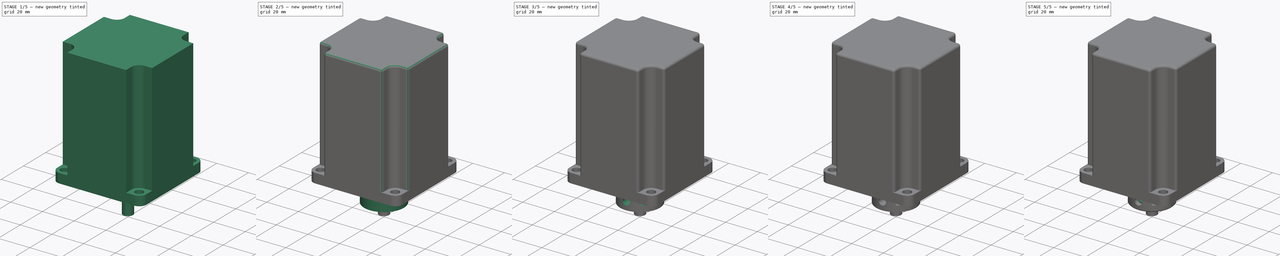
[diagram: build sequence overview — one tinted view per stage of 5, left to right]
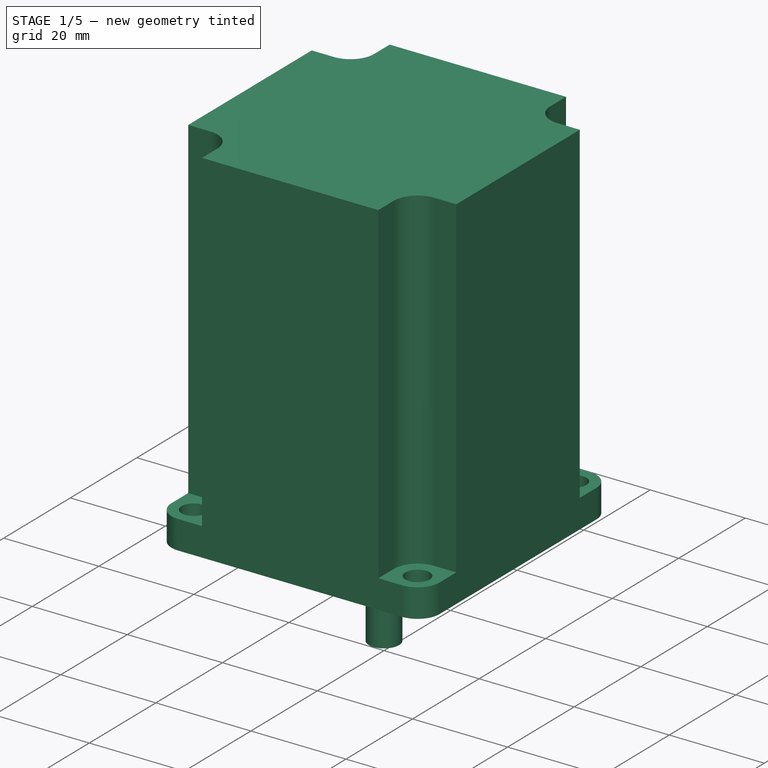
[diagram: stage 1 of 5 — iso view after this stage's code; geometry added in this stage tinted green]
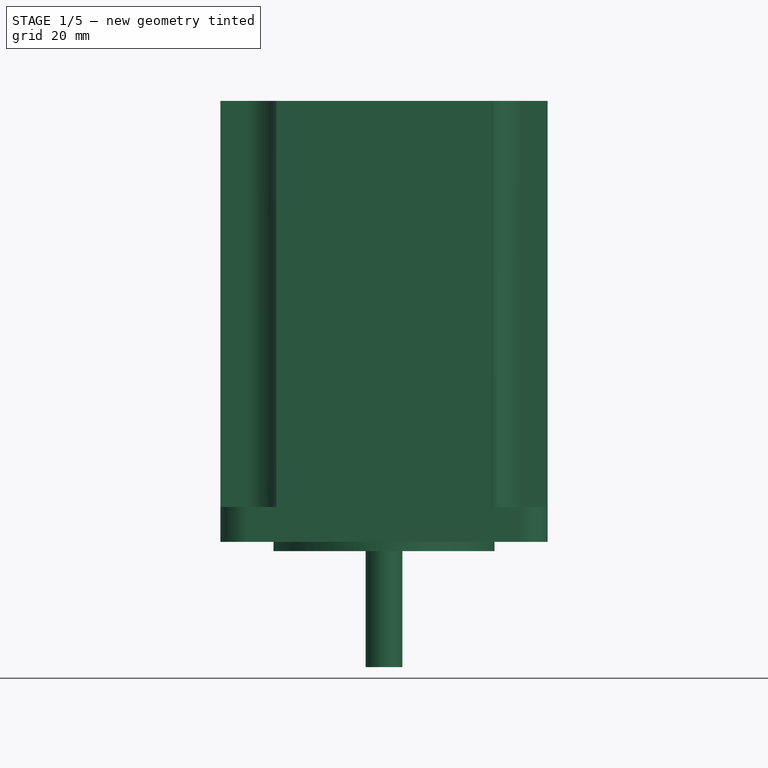
[diagram: stage 1 of 5 — front view after this stage's code; geometry added in this stage tinted green]
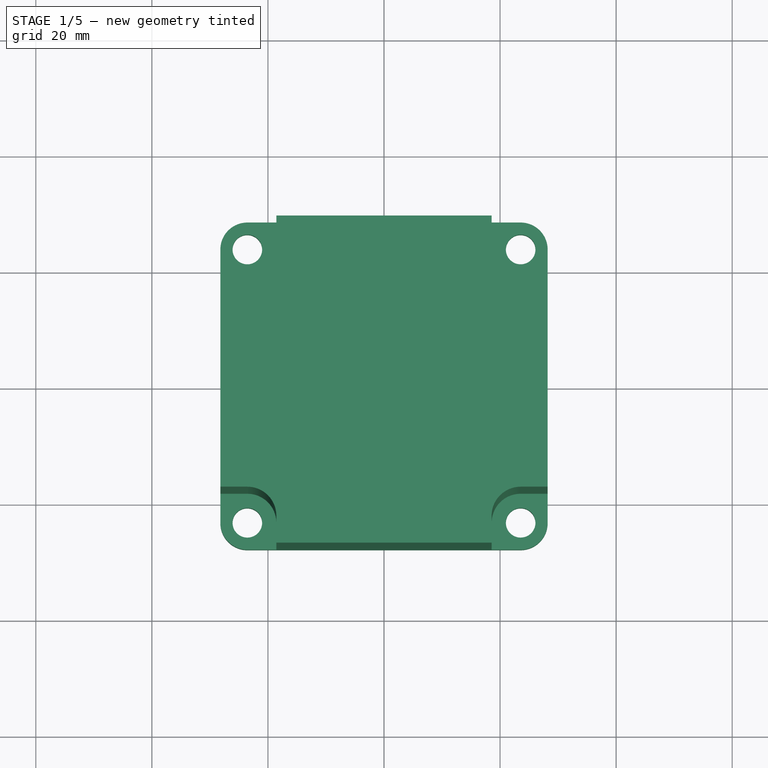
[diagram: stage 1 of 5 — top view after this stage's code; geometry added in this stage tinted green]
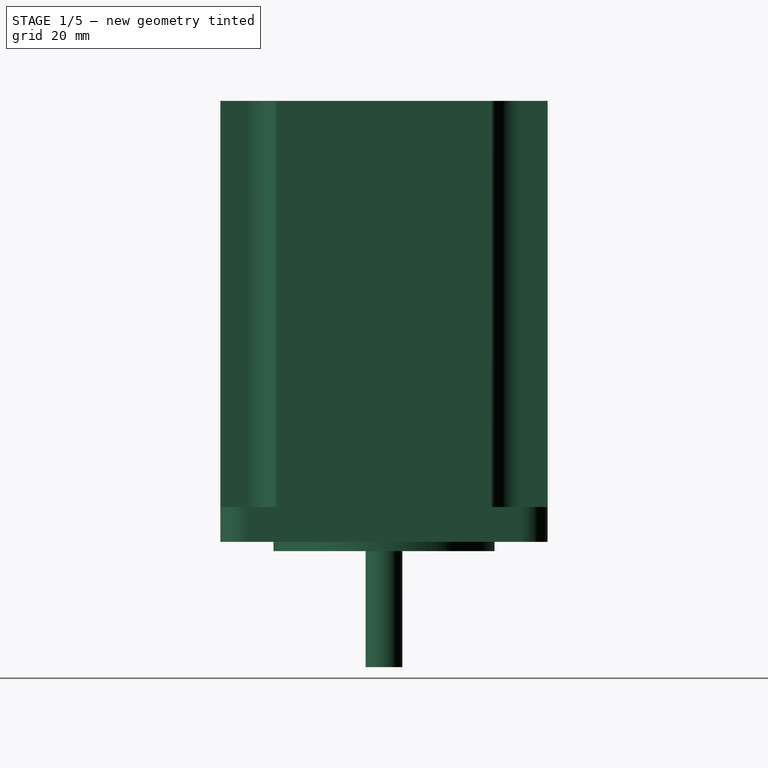
[diagram: stage 1 of 5 — right view after this stage's code; geometry added in this stage tinted green]
FCSTD DOCUMENT  (FreeCAD 2021.614R24301 +3747 (Git))
Label: NEMA23-76
License: Creative Commons Attribution
LicenseURL: http://creativecommons.org/licenses/by/4.0/
objects: App::FeaturePython×32, Part::FeaturePython×28, Sketcher::SketchObject×14, PartDesign::Pad×5, App::Link×5, PartDesign::Pocket×4, PartDesign::Hole×4, App::LinkElement×4, PartDesign::Body×2, PartDesign::Fillet×1, PartDesign::Line×1, PartDesign::SubtractiveHelix×1, PartDesign::Chamfer×1, App::DocumentObjectGroup×1
note: 91 computed .brp shape members not serialized (recipe doc carries the construction recipe); baked Part::Feature solids carry a one-line shape summary decoded from their .brp

FEATURE [Sketcher::SketchObject] Sketch
  FullyConstrained = true
  MapMode = 5
  Support = -> [XY_Plane]
  sketch-geometry (16):
    g0: LineSegment StartX=-23.55 StartY=28.2 StartZ=0 EndX=23.55 EndY=28.2 EndZ=0
    g1: LineSegment StartX=28.2 StartY=23.55 StartZ=0 EndX=28.2 EndY=-23.55 EndZ=0
    g2: LineSegment StartX=23.55 StartY=-28.2 StartZ=0 EndX=-23.55 EndY=-28.2 EndZ=0
    g3: LineSegment StartX=-28.2 StartY=-23.55 StartZ=0 EndX=-28.2 EndY=23.55 EndZ=0
    g4: ArcOfCircle CenterX=-23.55 CenterY=23.55 CenterZ=0 NormalX=0 NormalY=0 NormalZ=1 AngleXU=0 Radius=4.65 StartAngle=1.5708 EndAngle=3.14159
    g5: GeomPoint [constr] X=-28.2 Y=28.2 Z=0
    g6: ArcOfCircle CenterX=23.55 CenterY=23.55 CenterZ=0 NormalX=0 NormalY=0 NormalZ=1 AngleXU=0 Radius=4.65 StartAngle=0 EndAngle=1.5708
    g7: GeomPoint [constr] X=28.2 Y=28.2 Z=0
    g8: ArcOfCircle CenterX=23.55 CenterY=-23.55 CenterZ=0 NormalX=0 NormalY=0 NormalZ=1 AngleXU=0 Radius=4.65 StartAngle=4.71239 EndAngle=6.28319
    g9: GeomPoint [constr] X=28.2 Y=-28.2 Z=0
    g10: ArcOfCircle CenterX=-23.55 CenterY=-23.55 CenterZ=0 NormalX=0 NormalY=0 NormalZ=1 AngleXU=0 Radius=4.65 StartAngle=3.14159 EndAngle=4.71239
    g11: GeomPoint [constr] X=-28.2 Y=-28.2 Z=0
    g12: Circle CenterX=-23.55 CenterY=23.55 CenterZ=0 NormalX=0 NormalY=0 NormalZ=1 AngleXU=0 Radius=2.55
    g13: Circle CenterX=23.55 CenterY=23.55 CenterZ=0 NormalX=0 NormalY=0 NormalZ=1 AngleXU=0 Radius=2.55
    g14: Circle CenterX=23.55 CenterY=-23.55 CenterZ=0 NormalX=0 NormalY=0 NormalZ=1 AngleXU=0 Radius=2.55
    g15: Circle CenterX=-23.55 CenterY=-23.55 CenterZ=0 NormalX=0 NormalY=0 NormalZ=1 AngleXU=0 Radius=2.55
  constraints (35):
    c: Horizontal(g0)
    c: Horizontal(g2)
    c: Vertical(g1)
    c: Vertical(g3)
    c: Symmetric(g9,g5,g-1)
    c: PointOnObject(g5,g0)
    c: PointOnObject(g5,g3)
    c: Tangent(g0,g4) = 1.5708
    c: Tangent(g3,g4) = 1.5708
    c: PointOnObject(g7,g0)
    c: PointOnObject(g7,g1)
    c: Tangent(g0,g6) = 1.5708
    c: Tangent(g1,g6) = 1.5708
    c: PointOnObject(g9,g1)
    c: PointOnObject(g9,g2)
    c: Tangent(g1,g8) = 1.5708
    c: Tangent(g2,g8) = 1.5708
    c: PointOnObject(g11,g2)
    c: PointOnObject(g11,g3)
    c: Tangent(g2,g10) = 1.5708
    c: Tangent(g3,g10) = 1.5708
    c: Equal(g10,g8)
    c: Equal(g8,g6)
    c: Equal(g6,g4)
    c: Equal(g0,g1)
    c: DistanceX(g3,g1) = 56.4
    c: Coincident(g12,g4)
    c: Coincident(g13,g6)
    c: Coincident(g14,g8)
    c: Coincident(g15,g10)
    c: Equal(g15,g14)
    c: Equal(g14,g13)
    c: Equal(g13,g12)
    c: Diameter(g12) = 5.1
    c: DistanceX(g4,g6) = 47.1
FEATURE [PartDesign::Pad] Pad
  ClaimChildren = false
  Direction = (1,1,1)
  Fit = 0
  FitJoin = 0
  InnerFit = 0
  InnerFitJoin = 0
  InnerTaperAngle = 0
  InnerTaperAngleRev = 0
  Length = 6
  Length2 = 100
  Linearize = true
  NewSolid = false
  Profile = -> Sketch
  Refine = true
  Suppress = false
  Type = 0
FEATURE [Sketcher::SketchObject] Sketch001
  ExternalGeometry = -> [Pad]
  FullyConstrained = true
  MapMode = 5
  Placement = pos=(0,0,6) rot=(0,0,1;0rad)
  Support = -> [Pad]
  sketch-geometry (16):
    g0: LineSegment StartX=-18.55 StartY=28.2 StartZ=0 EndX=18.55 EndY=28.2 EndZ=0
    g1: LineSegment StartX=28.2 StartY=18.55 StartZ=0 EndX=28.2 EndY=-18.55 EndZ=0
    g2: LineSegment StartX=18.55 StartY=-28.2 StartZ=0 EndX=-18.55 EndY=-28.2 EndZ=0
    g3: LineSegment StartX=-28.2 StartY=-18.55 StartZ=0 EndX=-28.2 EndY=18.55 EndZ=0
    g4: ArcOfCircle CenterX=-23.55 CenterY=23.55 CenterZ=0 NormalX=0 NormalY=0 NormalZ=1 AngleXU=0 Radius=5 StartAngle=4.71239 EndAngle=6.28319
    g5: ArcOfCircle CenterX=23.55 CenterY=23.55 CenterZ=0 NormalX=0 NormalY=0 NormalZ=1 AngleXU=0 Radius=5 StartAngle=3.14159 EndAngle=4.71239
    g6: ArcOfCircle CenterX=23.55 CenterY=-23.55 CenterZ=0 NormalX=0 NormalY=0 NormalZ=1 AngleXU=0 Radius=5 StartAngle=1.5708 EndAngle=3.14159
    g7: ArcOfCircle CenterX=-23.55 CenterY=-23.55 CenterZ=0 NormalX=0 NormalY=0 NormalZ=1 AngleXU=0 Radius=5 StartAngle=1e-16 EndAngle=1.5708
    g8: LineSegment StartX=-18.55 StartY=28.2 StartZ=0 EndX=-18.55 EndY=23.55 EndZ=0
    g9: LineSegment StartX=-23.55 StartY=18.55 StartZ=0 EndX=-28.2 EndY=18.55 EndZ=0
    g10: LineSegment StartX=18.55 StartY=23.55 StartZ=0 EndX=18.55 EndY=28.2 EndZ=0
    g11: LineSegment StartX=23.55 StartY=18.55 StartZ=0 EndX=28.2 EndY=18.55 EndZ=0
    g12: LineSegment StartX=23.55 StartY=-18.55 StartZ=0 EndX=28.2 EndY=-18.55 EndZ=0
    g13: LineSegment StartX=18.55 StartY=-23.55 StartZ=0 EndX=18.55 EndY=-28.2 EndZ=0
    g14: LineSegment StartX=-18.55 StartY=-23.55 StartZ=0 EndX=-18.55 EndY=-28.2 EndZ=0
    g15: LineSegment StartX=-23.55 StartY=-18.55 StartZ=0 EndX=-28.2 EndY=-18.55 EndZ=0
  constraints (40):
    c: Horizontal(g0)
    c: Horizontal(g2)
    c: Vertical(g1)
    c: Vertical(g3)
    c: Coincident(g4,g-4)
    c: Vertical(g7,g4)
    c: Horizontal(g4,g5)
    c: Vertical(g5,g6)
    c: Horizontal(g7,g6)
    c: Symmetric(g6,g4,g-1)
    c: Equal(g5,g4)
    c: Equal(g4,g7)
    c: Equal(g7,g6)
    c: Diameter(g4) = 10
    c: Vertical(g10)
    c: Horizontal(g11)
    c: Horizontal(g12)
    c: Vertical(g14)
    c: Vertical(g8)
    c: Horizontal(g9)
    c: Coincident(g0,g8)
    c: Coincident(g3,g9)
    c: Coincident(g0,g10)
    c: Coincident(g1,g11)
    c: Coincident(g1,g12)
    c: Coincident(g2,g13)
    c: Tangent(g6,g13) = -1.5708
    c: Coincident(g3,g15)
    c: Tangent(g7,g14) = 1.5708
    c: Coincident(g2,g14)
    c: Tangent(g7,g15) = -1.5708
    c: Tangent(g6,g12) = 1.5708
    c: Tangent(g5,g10) = 1.5708
    c: Tangent(g5,g11) = -1.5708
    c: Tangent(g4,g8) = 1.5708
    c: Tangent(g4,g9) = 1.5708
    c: Horizontal(g0,g-4)
    c: Vertical(g3,g-4)
    c: Symmetric(g2,g0,g-1)
    c: Symmetric(g1,g3,g-2)
FEATURE [PartDesign::Pad] Pad001
  BaseFeature = -> Pad
  ClaimChildren = false
  Direction = (1,1,1)
  Fit = 0
  FitJoin = 0
  InnerFit = 0
  InnerFitJoin = 0
  InnerTaperAngle = 0
  InnerTaperAngleRev = 0
  Length = 70
  Length2 = 100
  Linearize = true
  NewSolid = false
  Profile = -> Sketch001
  Refine = true
  Suppress = false
  Type = 0
FEATURE [Sketcher::SketchObject] Sketch002
  FullyConstrained = true
  MapMode = 5
  Placement = pos=(0,0,0) rot=(1,0,0;3.14159rad)
  Support = -> [Pad001]
  sketch-geometry (1):
    g0: Circle CenterX=0 CenterY=0 CenterZ=0 NormalX=0 NormalY=0 NormalZ=1 AngleXU=0 Radius=19.05
  constraints (2):
    c: Coincident(g0,g-1)
    c: Diameter(g0) = 38.1
FEATURE [PartDesign::Pad] Pad002
  BaseFeature = -> Pad001
  ClaimChildren = false
  Direction = (1,1,1)
  Fit = 0
  FitJoin = 0
  InnerFit = 0
  InnerFitJoin = 0
  InnerTaperAngle = 0
  InnerTaperAngleRev = 0
  Length = 1.6
  Length2 = 100
  Linearize = true
  NewSolid = false
  Profile = -> Sketch002
  Refine = true
  Suppress = false
  Type = 0
FEATURE [Sketcher::SketchObject] Sketch003
  FullyConstrained = true
  MapMode = 5
  Placement = pos=(0,0,-1.6) rot=(1,0,0;3.14159rad)
  Support = -> [Pad002]
  sketch-geometry (1):
    g0: Circle CenterX=0 CenterY=0 CenterZ=0 NormalX=0 NormalY=0 NormalZ=1 AngleXU=0 Radius=3.175
  constraints (2):
    c: Coincident(g0,g-1)
    c: Diameter(g0) = 6.35
FEATURE [PartDesign::Pad] Pad003
  BaseFeature = -> Pad002
  ClaimChildren = false
  Direction = (1,1,1)
  Fit = 0
  FitJoin = 0
  InnerFit = 0
  InnerFitJoin = 0
  InnerTaperAngle = 0
  InnerTaperAngleRev = 0
  Length = 20
  Length2 = 100
  Linearize = true
  NewSolid = false
  Profile = -> Sketch003
  Refine = true
  Suppress = false
  Type = 0
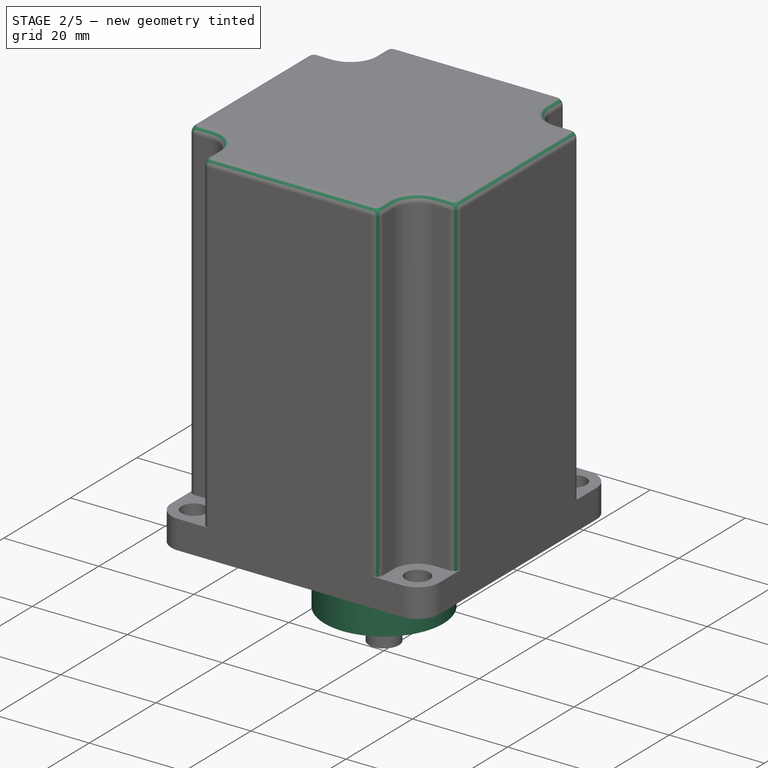
[diagram: stage 2 of 5 — iso view after this stage's code; geometry added in this stage tinted green]
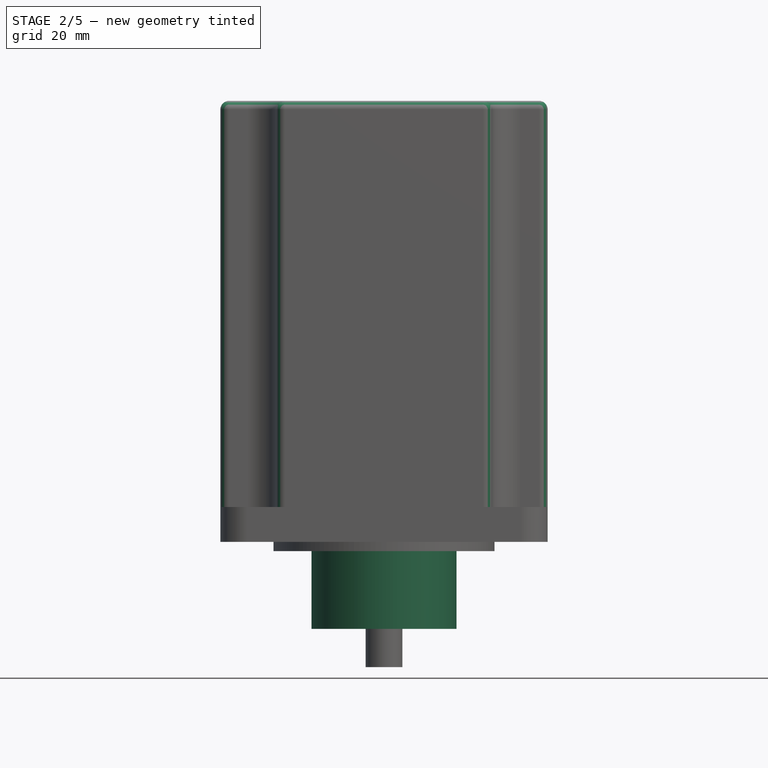
[diagram: stage 2 of 5 — front view after this stage's code; geometry added in this stage tinted green]
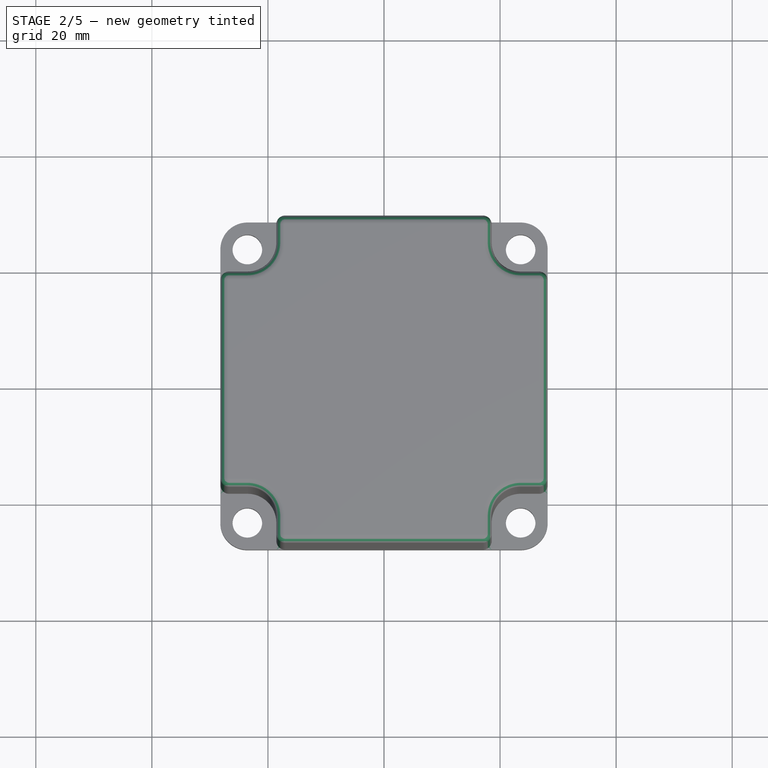
[diagram: stage 2 of 5 — top view after this stage's code; geometry added in this stage tinted green]
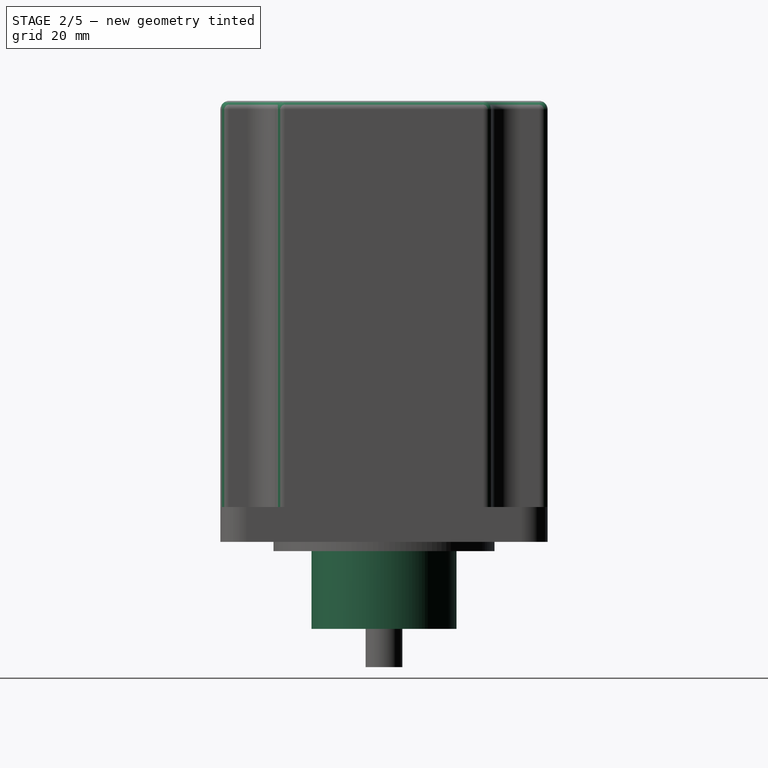
[diagram: stage 2 of 5 — right view after this stage's code; geometry added in this stage tinted green]
FEATURE [PartDesign::Fillet] Fillet
  Base = -> Pad003 [Edge71,Edge8,Edge6,Edge16,Edge14,Edge68,Edge67,Edge72,Edge39,Edge40,Edge43,Edge44,Edge15,Edge47,Edge7,Edge36]
  BaseFeature = -> Pad003
  NewSolid = false
  Radius = 1.5
  Refine = true
  SupportTransform = false
  Suppress = false
FEATURE [App::Link] Link  label="Link(Nema23)"
  AutoLinkLabel = true
  LinkedObject = -> Body
  SyncGroupVisibility = false
  _LinkVersion = 1
FEATURE [PartDesign::Line] DatumLine
  AttacherType = Attacher::AttachEngineLine
  Length = 97.6
  MapMode = 19
  MinimumLength = 10
  Placement = pos=(0,0,-21.6) rot=(-1,0,0;3.14159rad)
  ResizeMode = 0
  Support = -> [Fillet]
FEATURE [PartDesign::Body] Body  label="Nema23"
  AutoGroupSolids = false
  ExportMode = 0
  Group = -> [Sketch,Pad,Sketch001,Pad001,Sketch002,Pad002,Sketch003,Pad003,Fillet,DatumLine]
  Origin = -> Origin
  Tip = -> Fillet
  _ExportChildren = -> [Pad,Pad001,Pad002,Pad003,Fillet,DatumLine]
  _GroupVersion = 1
FEATURE [Sketcher::SketchObject] Sketch004
  FullyConstrained = true
  MapMode = 5
  Support = -> [XY_Plane001]
  sketch-geometry (1):
    g0: Circle CenterX=0 CenterY=0 CenterZ=0 NormalX=0 NormalY=0 NormalZ=1 AngleXU=0 Radius=12.5
  constraints (2):
    c: Coincident(g0,g-1)
    c: Diameter(g0) = 25
FEATURE [PartDesign::Pad] Pad004
  ClaimChildren = false
  Direction = (1,1,1)
  Fit = 0
  FitJoin = 0
  InnerFit = 0
  InnerFitJoin = 0
  InnerTaperAngle = 0
  InnerTaperAngleRev = 0
  Length = 30
  Length2 = 100
  Linearize = true
  Midplane = true
  NewSolid = false
  Profile = -> Sketch004
  Refine = true
  Suppress = false
  Type = 0
FEATURE [Sketcher::SketchObject] Sketch005
  FullyConstrained = true
  MapMode = 5
  Placement = pos=(0,0,15) rot=(0,0,1;0rad)
  Support = -> [Pad004]
  sketch-geometry (1):
    g0: Circle CenterX=0 CenterY=0 CenterZ=0 NormalX=0 NormalY=0 NormalZ=1 AngleXU=0 Radius=3.175
  constraints (2):
    c: Coincident(g0,g-1)
    c: Diameter(g0) = 6.35
FEATURE [PartDesign::Pocket] Pocket
  BaseFeature = -> Pad004
  ClaimChildren = false
  Fit = 0
  FitJoin = 0
  InnerFit = 0
  InnerFitJoin = 0
  InnerTaperAngle = 0
  InnerTaperAngleRev = 0
  Length = 5
  Length2 = 100
  Linearize = true
  NewSolid = false
  Profile = -> Sketch005
  Refine = true
  Suppress = false
  Type = 1
FEATURE [PartDesign::Body] Body001  label="Coupling"
  AutoGroupSolids = false
  ExportMode = 0
  Group = -> [Sketch004,Pad004,Sketch005,Pocket,Sketch006,Pocket001,Sketch007,Sketch008,Hole,Sketch009,Sketch010,Sketch011,Hole001,Hole002,Hole003,Sketch012,SubtractiveHelix,Pocket002,Sketch013,Pocket003,Chamfer]
  Origin = -> Origin001
  Placement = pos=(0,0,-51) rot=(0,0,1;0rad)
  Tip = -> Chamfer
  _ExportChildren = -> [Pad004,Pocket,Pocket001,Hole,Hole001,Hole002,Hole003,SubtractiveHelix,Pocket002,Pocket003,Chamfer]
  _GroupVersion = 1
FEATURE [Part::FeaturePython] Screw002  label="M5x16-Screw"  # Fasteners workbench fastener (typed FeaturePython)
  diameter = 6
  invert = false
  length = 4
  lengthCustom = 16
  matchOuter = false
  offset = 0
  thread = false
  type = 33
FEATURE [App::DocumentObjectGroup] Group  label="Components"
  ExportMode = 1
  Group = -> [Body001,Body,Screw002]
  _GroupVersion = 1
FEATURE [App::LinkElement] Link004_i0
  LinkPlacement = pos=(23.55,67.55,6) rot=(0,0,1;0rad)
  LinkedObject = -> Screw002
  Placement = pos=(23.55,67.55,6) rot=(0,0,1;0rad)
  _LinkVersion = 1
FEATURE [App::LinkElement] Link004_i1
  LinkPlacement = pos=(-23.55,67.55,6) rot=(0,0,1;0rad)
  LinkedObject = -> Screw002
  Placement = pos=(-23.55,67.55,6) rot=(0,0,1;0rad)
  _LinkVersion = 1
FEATURE [App::LinkElement] Link004_i2
  LinkPlacement = pos=(-23.55,20.45,6) rot=(0,0,1;0rad)
  LinkedObject = -> Screw002
  Placement = pos=(-23.55,20.45,6) rot=(0,0,1;0rad)
  _LinkVersion = 1
FEATURE [App::LinkElement] Link004_i3
  LinkPlacement = pos=(23.55,20.45,6) rot=(0,0,1;0rad)
  LinkedObject = -> Screw002
  Placement = pos=(23.55,20.45,6) rot=(0,0,1;0rad)
  _LinkVersion = 1
FEATURE [App::Link] Link004  label="M5x16-Screw 4ct"
  AutoLinkLabel = true
  ElementCount = 4
  ElementList = -> [Link004_i0,Link004_i1,Link004_i2,Link004_i3]
  LinkPlacement = pos=(0,-44,0) rot=(0,0,1;0rad)
  LinkedObject = -> Screw002
  Placement = pos=(0,-44,0) rot=(0,0,1;0rad)
  SyncGroupVisibility = false
  _LinkVersion = 1
FEATURE [Part::FeaturePython] Parts  # WARN: FeaturePython — macro-defined, semantics opaque (R4)
  Group = -> [Link,Link004]
  GroupMode = 0
  _LinkVersion = 1
FEATURE [Part::FeaturePython] Assembly  label="NEMA23-76-Assembly"  # WARN: FeaturePython — macro-defined, semantics opaque (R4)
  AutoRelax = true
  BuildShape = 0
  Freeze = false
  Group = -> [Constraints,Elements,Parts]
  Verbose = false
  _LinkVersion = 1
  _SolverType = 1
  _Version = 1
FEATURE [App::FeaturePython] Constraints  # WARN: FeaturePython — macro-defined, semantics opaque (R4)
  Group = -> [Constraint004,Constraint006,Constraint007,Constraint008,Constraint009]
  _LinkVersion = 1
  _Version = 1
FEATURE [App::FeaturePython] Elements  # WARN: FeaturePython — macro-defined, semantics opaque (R4)
  Group = -> [Element,Element001,Element002,Element003,Element004,Element005,Element010,_Element006,_Element007,_Element008,_Element009]
  _LinkVersion = 1
FEATURE [Part::FeaturePython] Element  # link proxy (typed FeaturePython)
  Detach = false
  LinkTransform = true
  LinkedObject = -> Link [Fillet.Edge19]
  _LinkVersion = 1
  _Parent = -> Elements
FEATURE [Part::FeaturePython] Element001  # link proxy (typed FeaturePython)
  Detach = false
  LinkTransform = true
  LinkedObject = -> Link [Fillet.Edge49]
  _LinkVersion = 1
  _Parent = -> Elements
FEATURE [Part::FeaturePython] Element002  # link proxy (typed FeaturePython)
  Detach = false
  LinkTransform = true
  LinkedObject = -> Link [Fillet.Edge101]
  _LinkVersion = 1
  _Parent = -> Elements
FEATURE [Part::FeaturePython] Element003  # link proxy (typed FeaturePython)
  Detach = false
  LinkTransform = true
  LinkedObject = -> Link [Fillet.Edge103]
  _LinkVersion = 1
  _Parent = -> Elements
FEATURE [Part::FeaturePython] Element004  label="bracket-mate"  # link proxy (typed FeaturePython)
  Detach = false
  LinkTransform = true
  LinkedObject = -> Link [Fillet.Edge36]
  _LinkVersion = 1
  _Parent = -> Elements
FEATURE [Part::FeaturePython] Element005  label="Axis"  # link proxy (typed FeaturePython)
  Detach = false
  LinkTransform = true
  LinkedObject = -> Link [DatumLine.]
  _LinkVersion = 1
  _Parent = -> Elements
FEATURE [Part::FeaturePython] Assembly001  label="Coupling-Assembly"  # WARN: FeaturePython — macro-defined, semantics opaque (R4)
  AutoRelax = true
  BuildShape = 0
  Freeze = false
  Group = -> [Constraints001,Elements001,Parts001]
  Placement = pos=(0,5.84137e-06,-49) rot=(0,0,1;0rad)
  Verbose = false
  _LinkVersion = 1
  _SolverType = 1
  _Version = 1
FEATURE [App::FeaturePython] Constraints001  # WARN: FeaturePython — macro-defined, semantics opaque (R4)
  Group = -> [Constraint,Constraint001,Constraint002,Constraint003,Constraint005]
  _LinkVersion = 1
  _Version = 1
FEATURE [App::FeaturePython] Elements001  # WARN: FeaturePython — macro-defined, semantics opaque (R4)
  Group = -> [Element006,Element007,_Element,_Element001,_Element002,_Element003,_Element004,_Element005,Element008,Element009]
  _LinkVersion = 1
FEATURE [Part::FeaturePython] Element006  # link proxy (typed FeaturePython)
  Detach = false
  LinkTransform = true
  LinkedObject = -> Link001 [Hole.Sketch008.Edge2]
  Offset = pos=(0,0,3) rot=(0,0,1;0rad)
  Placement = pos=(0,-3,0) rot=(0,0,1;0rad)
  _LinkVersion = 1
  _Parent = -> Elements001
FEATURE [Part::FeaturePython] Element007  # link proxy (typed FeaturePython)
  Detach = false
  LinkTransform = true
  LinkedObject = -> Link001 [Hole.Sketch008.Edge1]
  Offset = pos=(0,0,5) rot=(0,0,1;0rad)
  Placement = pos=(0,-5,1.8e-15) rot=(0,0,1;0rad)
  _LinkVersion = 1
  _Parent = -> Elements001
FEATURE [App::FeaturePython] Constraint  label="Attachment"  # WARN: FeaturePython — macro-defined, semantics opaque (R4)
  Cascade = false
  Disabled = false
  Group = -> [ElementLink,ElementLink001]
  Multiply = false
  _ConstraintType = 45
  _LinkVersion = 1
  _Parent = -> Constraints001
FEATURE [App::FeaturePython] ElementLink  label="_Element"  # link proxy (typed FeaturePython)
  LinkTransform = true
  LinkedObject = -> _Element
  _LinkVersion = 1
  _Parent = -> Constraint
FEATURE [Part::FeaturePython] _Element  # link proxy (typed FeaturePython)
  Detach = false
  LinkTransform = true
  LinkedObject = -> Link001 [Pocket003.Edge106]
  _LinkVersion = 1
  _Parent = -> Elements001
FEATURE [App::FeaturePython] ElementLink001  label="_Element001"  # link proxy (typed FeaturePython)
  LinkTransform = true
  LinkedObject = -> _Element001
  _LinkVersion = 1
  _Parent = -> Constraint
FEATURE [Part::FeaturePython] _Element001  # link proxy (typed FeaturePython)
  Detach = false
  LinkTransform = true
  LinkedObject = -> Screw [Edge9]
  _LinkVersion = 1
  _Parent = -> Elements001
FEATURE [App::FeaturePython] Constraint001  label="Attachment001"  # WARN: FeaturePython — macro-defined, semantics opaque (R4)
  Cascade = false
  Disabled = false
  Group = -> [ElementLink002,ElementLink003]
  Multiply = false
  _ConstraintType = 45
  _LinkVersion = 1
  _Parent = -> Constraints001
FEATURE [App::FeaturePython] ElementLink002  label="_Element002"  # link proxy (typed FeaturePython)
  LinkTransform = true
  LinkedObject = -> _Element002
  _LinkVersion = 1
  _Parent = -> Constraint001
FEATURE [Part::FeaturePython] _Element002  # link proxy (typed FeaturePython)
  Detach = false
  LinkTransform = true
  LinkedObject = -> Link001 [Pocket003.Edge174]
  _LinkVersion = 1
  _Parent = -> Elements001
FEATURE [App::FeaturePython] ElementLink003  label="_Element003"  # link proxy (typed FeaturePython)
  LinkTransform = true
  LinkedObject = -> _Element003
  _LinkVersion = 1
  _Parent = -> Constraint001
FEATURE [Part::FeaturePython] _Element003  # link proxy (typed FeaturePython)
  Detach = false
  LinkTransform = true
  LinkedObject = -> Link003 [Edge9]
  _LinkVersion = 1
  _Parent = -> Elements001
FEATURE [App::FeaturePython] Constraint002  label="Attachment002"  # WARN: FeaturePython — macro-defined, semantics opaque (R4)
  Cascade = false
  Disabled = false
  Group = -> [ElementLink004,ElementLink005]
  Multiply = false
  _ConstraintType = 45
  _LinkVersion = 1
  _Parent = -> Constraints001
FEATURE [App::FeaturePython] ElementLink004  label="Element006"  # link proxy (typed FeaturePython)
  LinkTransform = true
  LinkedObject = -> Element006
  _LinkVersion = 1
  _Parent = -> Constraint002
FEATURE [App::FeaturePython] ElementLink005  label="_Element004"  # link proxy (typed FeaturePython)
  LinkTransform = true
  LinkedObject = -> _Element004
  _LinkVersion = 1
  _Parent = -> Constraint002
FEATURE [Part::FeaturePython] _Element004  # link proxy (typed FeaturePython)
  Detach = false
  LinkTransform = true
  LinkedObject = -> Screw001 [Edge10]
  _LinkVersion = 1
  _Parent = -> Elements001
FEATURE [App::FeaturePython] Constraint003  label="Attachment003"  # WARN: FeaturePython — macro-defined, semantics opaque (R4)
  Cascade = false
  Disabled = false
  Group = -> [ElementLink006,ElementLink007]
  Multiply = false
  _ConstraintType = 45
  _LinkVersion = 1
  _Parent = -> Constraints001
FEATURE [App::FeaturePython] ElementLink006  label="Element007"  # link proxy (typed FeaturePython)
  LinkTransform = true
  LinkedObject = -> Element007
  _LinkVersion = 1
  _Parent = -> Constraint003
FEATURE [App::FeaturePython] ElementLink007  label="_Element005"  # link proxy (typed FeaturePython)
  LinkTransform = true
  LinkedObject = -> _Element005
  _LinkVersion = 1
  _Parent = -> Constraint003
FEATURE [Part::FeaturePython] _Element005  # link proxy (typed FeaturePython)
  Detach = false
  LinkTransform = true
  LinkedObject = -> Link002 [Edge10]
  _LinkVersion = 1
  _Parent = -> Elements001
FEATURE [Part::FeaturePython] Element008  label="motor-mate"  # link proxy (typed FeaturePython)
  Detach = false
  LinkTransform = true
  LinkedObject = -> Link001 [Pocket.Sketch005.]
  Offset = pos=(0,0,-21) rot=(0,0,1;0rad)
  Placement = pos=(0,0,-21) rot=(0,0,1;0rad)
  _LinkVersion = 1
  _Parent = -> Elements001
FEATURE [Part::FeaturePython] Element009  label="screw-mate"  # link proxy (typed FeaturePython)
  Detach = false
  LinkTransform = true
  LinkedObject = -> Link001 [Pocket.Sketch005.]
  Offset = pos=(0,0,-10) rot=(0,0,1;0rad)
  Placement = pos=(0,0,-10) rot=(0,0,1;0rad)
  _LinkVersion = 1
  _Parent = -> Elements001
FEATURE [Part::FeaturePython] Element010  label="coupling-mate"  # link proxy (typed FeaturePython)
  Detach = false
  LinkTransform = true
  LinkedObject = -> Link [Fillet.Edge170]
  _LinkVersion = 1
  _Parent = -> Elements
FEATURE [App::FeaturePython] Constraint004  label="Locked"  # WARN: FeaturePython — macro-defined, semantics opaque (R4)
  Disabled = false
  Group = -> [ElementLink008]
  _ConstraintType = 0
  _LinkVersion = 1
  _Parent = -> Constraints
FEATURE [App::FeaturePython] ElementLink008  label="coupling-mate"  # link proxy (typed FeaturePython)
  LinkTransform = true
  LinkedObject = -> Element010
  _LinkVersion = 1
  _Parent = -> Constraint004
FEATURE [App::FeaturePython] Constraint005  label="Locked001"  # WARN: FeaturePython — macro-defined, semantics opaque (R4)
  Disabled = false
  Group = -> [ElementLink009]
  _ConstraintType = 0
  _LinkVersion = 1
  _Parent = -> Constraints001
FEATURE [App::FeaturePython] ElementLink009  label="motor-mate"  # link proxy (typed FeaturePython)
  LinkTransform = true
  LinkedObject = -> Element008
  _LinkVersion = 1
  _Parent = -> Constraint005
FEATURE [App::FeaturePython] Constraint006  label="Attachment004"  # WARN: FeaturePython — macro-defined, semantics opaque (R4)
  Cascade = false
  Disabled = false
  Group = -> [ElementLink010,ElementLink011]
  Multiply = false
  _ConstraintType = 45
  _LinkVersion = 1
  _Parent = -> Constraints
FEATURE [App::FeaturePython] ElementLink010  label="_Element006"  # link proxy (typed FeaturePython)
  LinkTransform = true
  LinkedObject = -> _Element006
  _LinkVersion = 1
  _Parent = -> Constraint006
FEATURE [Part::FeaturePython] _Element006  # link proxy (typed FeaturePython)
  Detach = false
  LinkTransform = true
  LinkedObject = -> Link004 [0.Edge9]
  _LinkVersion = 1
  _Parent = -> Elements
FEATURE [App::FeaturePython] ElementLink011  label="Element"  # link proxy (typed FeaturePython)
  LinkTransform = true
  LinkedObject = -> Element
  _LinkVersion = 1
  _Parent = -> Constraint006
FEATURE [App::FeaturePython] Constraint007  label="Attachment005"  # WARN: FeaturePython — macro-defined, semantics opaque (R4)
  Cascade = false
  Disabled = false
  Group = -> [ElementLink012,ElementLink013]
  Multiply = false
  _ConstraintType = 45
  _LinkVersion = 1
  _Parent = -> Constraints
FEATURE [App::FeaturePython] ElementLink012  label="_Element007"  # link proxy (typed FeaturePython)
  LinkTransform = true
  LinkedObject = -> _Element007
  _LinkVersion = 1
  _Parent = -> Constraint007
FEATURE [Part::FeaturePython] _Element007  # link proxy (typed FeaturePython)
  Detach = false
  LinkTransform = true
  LinkedObject = -> Link004 [1.Edge9]
  _LinkVersion = 1
  _Parent = -> Elements
FEATURE [App::FeaturePython] ElementLink013  label="Element001"  # link proxy (typed FeaturePython)
  LinkTransform = true
  LinkedObject = -> Element001
  _LinkVersion = 1
  _Parent = -> Constraint007
FEATURE [App::FeaturePython] Constraint008  label="Attachment006"  # WARN: FeaturePython — macro-defined, semantics opaque (R4)
  Cascade = false
  Disabled = false
  Group = -> [ElementLink014,ElementLink015]
  Multiply = false
  _ConstraintType = 45
  _LinkVersion = 1
  _Parent = -> Constraints
FEATURE [App::FeaturePython] ElementLink014  label="_Element008"  # link proxy (typed FeaturePython)
  LinkTransform = true
  LinkedObject = -> _Element008
  _LinkVersion = 1
  _Parent = -> Constraint008
FEATURE [Part::FeaturePython] _Element008  # link proxy (typed FeaturePython)
  Detach = false
  LinkTransform = true
  LinkedObject = -> Link004 [2.Edge9]
  _LinkVersion = 1
  _Parent = -> Elements
FEATURE [App::FeaturePython] ElementLink015  label="Element002"  # link proxy (typed FeaturePython)
  LinkTransform = true
  LinkedObject = -> Element002
  _LinkVersion = 1
  _Parent = -> Constraint008
FEATURE [App::FeaturePython] Constraint009  label="Attachment007"  # WARN: FeaturePython — macro-defined, semantics opaque (R4)
  Cascade = false
  Disabled = false
  Group = -> [ElementLink016,ElementLink017]
  Multiply = false
  _ConstraintType = 45
  _LinkVersion = 1
  _Parent = -> Constraints
FEATURE [App::FeaturePython] ElementLink016  label="_Element009"  # link proxy (typed FeaturePython)
  LinkTransform = true
  LinkedObject = -> _Element009
  _LinkVersion = 1
  _Parent = -> Constraint009
FEATURE [Part::FeaturePython] _Element009  # link proxy (typed FeaturePython)
  Detach = false
  LinkTransform = true
  LinkedObject = -> Link004 [3.Edge9]
  _LinkVersion = 1
  _Parent = -> Elements
FEATURE [App::FeaturePython] ElementLink017  label="Element003"  # link proxy (typed FeaturePython)
  LinkTransform = true
  LinkedObject = -> Element003
  _LinkVersion = 1
  _Parent = -> Constraint009
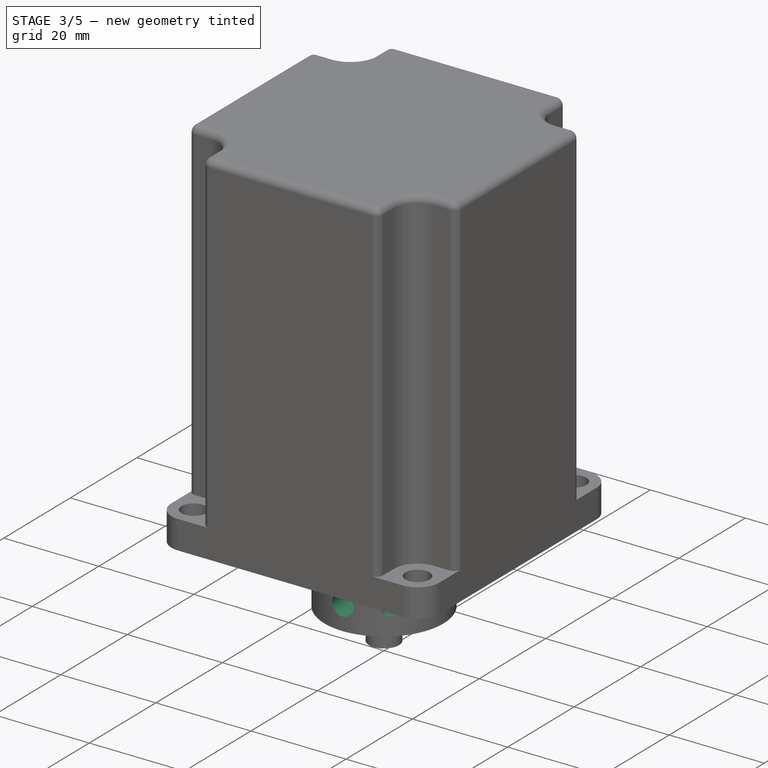
[diagram: stage 3 of 5 — iso view after this stage's code; geometry added in this stage tinted green]
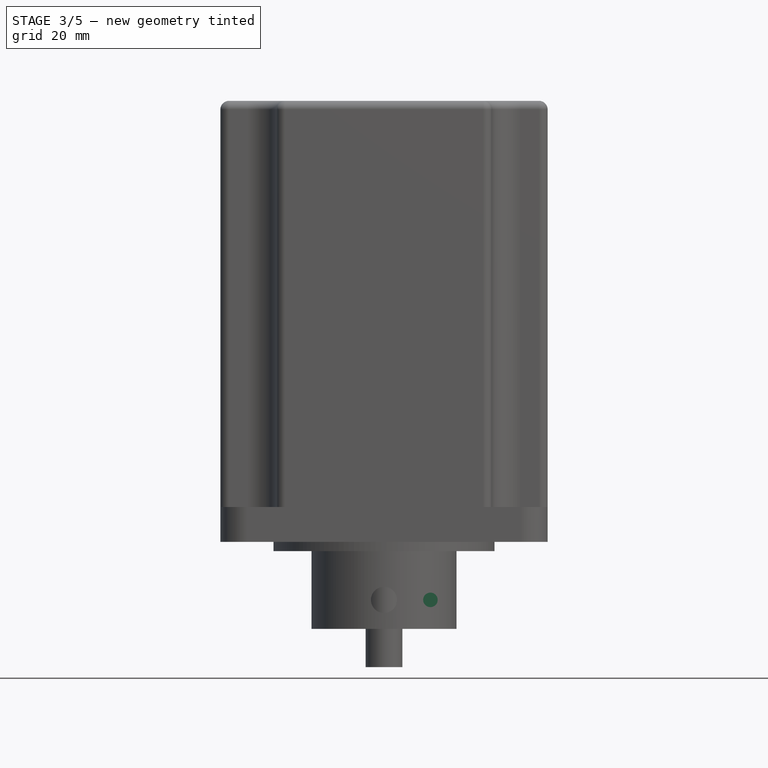
[diagram: stage 3 of 5 — front view after this stage's code; geometry added in this stage tinted green]
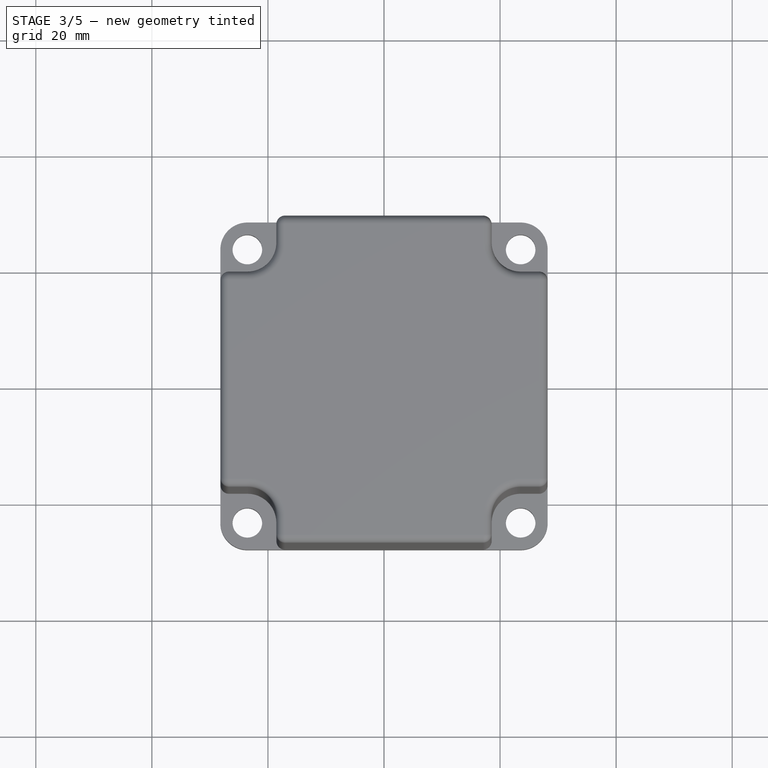
[diagram: stage 3 of 5 — top view after this stage's code; geometry added in this stage tinted green]
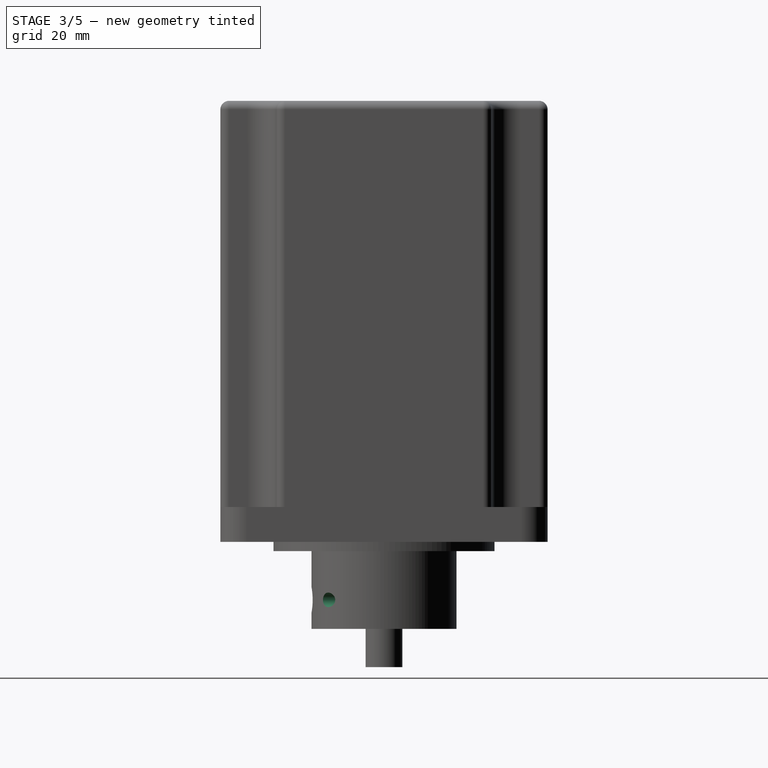
[diagram: stage 3 of 5 — right view after this stage's code; geometry added in this stage tinted green]
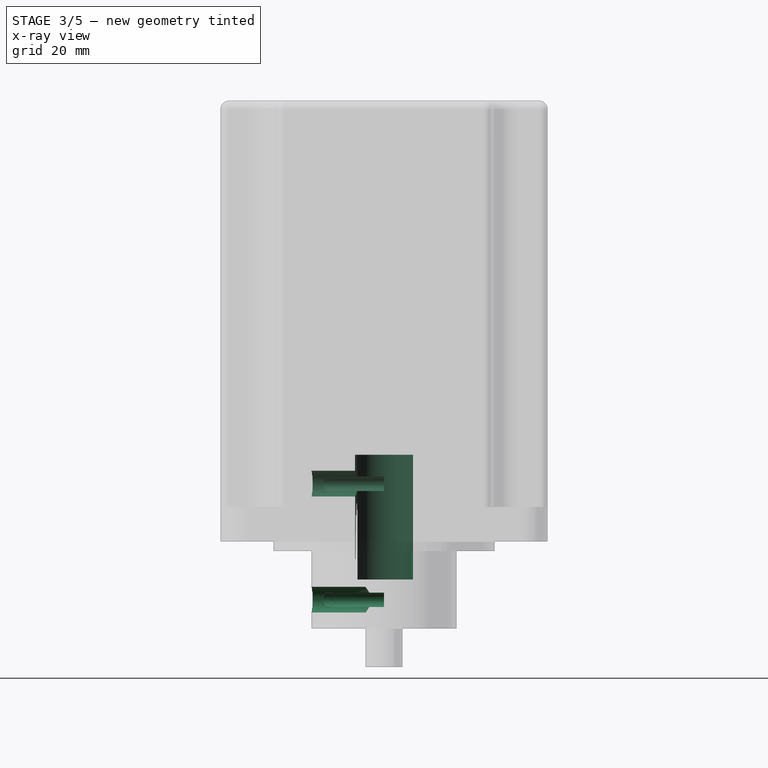
[diagram: stage 3 of 5 — x-ray composite at the right view; earlier geometry ghosted, this stage's added geometry solid]
FEATURE [Sketcher::SketchObject] Sketch006
  FullyConstrained = true
  MapMode = 5
  Placement = pos=(0,0,15) rot=(0,0,1;0rad)
  Support = -> [Pocket]
  sketch-geometry (1):
    g0: Circle CenterX=0 CenterY=0 CenterZ=0 NormalX=0 NormalY=0 NormalZ=1 AngleXU=0 Radius=5
  constraints (2):
    c: Coincident(g0,g-1)
    c: Diameter(g0) = 10
FEATURE [PartDesign::Pocket] Pocket001
  BaseFeature = -> Pocket
  ClaimChildren = false
  Fit = 0
  FitJoin = 0
  InnerFit = 0
  InnerFitJoin = 0
  InnerTaperAngle = 0
  InnerTaperAngleRev = 0
  Length = 21.5
  Length2 = 100
  Linearize = true
  NewSolid = false
  Profile = -> Sketch006
  Refine = true
  Suppress = false
  Type = 0
FEATURE [Sketcher::SketchObject] Sketch007
  FullyConstrained = true
  MapMode = 5
  Placement = pos=(0,0,15) rot=(0,0,1;0rad)
  Support = -> [Pocket001]
  sketch-geometry (4):
    g0: LineSegment StartX=-11.5 StartY=0.5 StartZ=0 EndX=13.5 EndY=0.5 EndZ=0
    g1: LineSegment StartX=13.5 StartY=0.5 StartZ=0 EndX=13.5 EndY=-0.5 EndZ=0
    g2: LineSegment StartX=13.5 StartY=-0.5 StartZ=0 EndX=-11.5 EndY=-0.5 EndZ=0
    g3: LineSegment StartX=-11.5 StartY=-0.5 StartZ=0 EndX=-11.5 EndY=0.5 EndZ=0
  constraints (11):
    c: Coincident(g0,g1)
    c: Coincident(g1,g2)
    c: Coincident(g2,g3)
    c: Coincident(g3,g0)
    c: Horizontal(g0)
    c: Horizontal(g2)
    c: DistanceY(g1,g1) = 1
    c: Symmetric(g1,g0,g-1)
    c: DistanceX(g2,g2) = 25
    c: Vertical(g3)
    c: DistanceX(g2,g-1) = 11.5
FEATURE [Sketcher::SketchObject] Sketch008
  FullyConstrained = true
  MapMode = 5
  Placement = pos=(0,0,0) rot=(1,0,0;1.5708rad)
  Support = -> [XZ_Plane001]
  sketch-geometry (2):
    g0: Circle CenterX=0 CenterY=10 CenterZ=0 NormalX=0 NormalY=0 NormalZ=1 AngleXU=0 Radius=1.75
    g1: Circle CenterX=0 CenterY=-10 CenterZ=0 NormalX=0 NormalY=0 NormalZ=1 AngleXU=0 Radius=1.75
  constraints (5):
    c: PointOnObject(g0,g-2)
    c: Equal(g1,g0)
    c: Symmetric(g0,g1,g-1)
    c: DistanceY(g1,g0) = 20
    c: Diameter(g0) = 3.5
FEATURE [PartDesign::Hole] Hole
  BaseFeature = -> Pocket001
  ClaimChildren = false
  CustomThreadClearance = 0
  Depth = 25
  DepthType = 1
  Diameter = 4.5
  DrillForDepth = false
  DrillPoint = 1
  DrillPointAngle = 118
  Fit = 0
  FitJoin = 0
  HoleCutCountersinkAngle = 90
  HoleCutCustomValues = false
  HoleCutDepth = 0
  HoleCutDiameter = 6.1
  HoleCutType = 0
  InnerFit = 0
  InnerFitJoin = 0
  ModelThread = false
  NewSolid = false
  Profile = -> Sketch008
  Refine = true
  Reversed = true
  Suppress = false
  Tapered = false
  TaperedAngle = 90
  ThreadClass = 0
  ThreadDepth = 93.5288
  ThreadDepthType = 0
  ThreadDirection = 0
  ThreadFit = 0
  ThreadSize = 0
  ThreadType = 0
  Threaded = false
  UseCustomThreadClearance = false
FEATURE [Sketcher::SketchObject] Sketch009
  FullyConstrained = true
  MapMode = 5
  Placement = pos=(0,0,0) rot=(1,0,0;1.5708rad)
  Support = -> [XZ_Plane001]
  sketch-geometry (2):
    g0: Circle CenterX=8 CenterY=10 CenterZ=0 NormalX=0 NormalY=0 NormalZ=1 AngleXU=0 Radius=1.25
    g1: Circle CenterX=8 CenterY=-10 CenterZ=0 NormalX=0 NormalY=0 NormalZ=1 AngleXU=0 Radius=1.25
  constraints (5):
    c: Symmetric(g0,g1,g-1)
    c: DistanceX(g-1,g0) = 8
    c: DistanceY(g1,g0) = 20
    c: Equal(g0,g1)
    c: Diameter(g0) = 2.5
FEATURE [Sketcher::SketchObject] Sketch010
  FullyConstrained = true
  MapMode = 5
  Placement = pos=(0,0,0) rot=(1,0,0;1.5708rad)
  Support = -> [XZ_Plane001]
  sketch-geometry (2):
    g0: Circle CenterX=8 CenterY=10 CenterZ=0 NormalX=0 NormalY=0 NormalZ=1 AngleXU=0 Radius=1.25
    g1: Circle CenterX=8 CenterY=-10 CenterZ=0 NormalX=0 NormalY=0 NormalZ=1 AngleXU=0 Radius=1.25
  constraints (5):
    c: Symmetric(g0,g1,g-1)
    c: DistanceX(g-1,g0) = 8
    c: DistanceY(g1,g0) = 20
    c: Equal(g0,g1)
    c: Diameter(g0) = 2.5
FEATURE [Sketcher::SketchObject] Sketch011
  AttachmentOffset = pos=(0,0,-4) rot=(0,0,1;0rad)
  FullyConstrained = true
  MapMode = 5
  Placement = pos=(0,4,9e-16) rot=(1,0,0;1.5708rad)
  Support = -> [XZ_Plane001]
  sketch-geometry (2):
    g0: Circle CenterX=8 CenterY=10 CenterZ=0 NormalX=0 NormalY=0 NormalZ=1 AngleXU=0 Radius=1.25
    g1: Circle CenterX=8 CenterY=-10 CenterZ=0 NormalX=0 NormalY=0 NormalZ=1 AngleXU=0 Radius=1.25
  constraints (5):
    c: Symmetric(g0,g1,g-1)
    c: DistanceX(g-1,g0) = 8
    c: DistanceY(g1,g0) = 20
    c: Equal(g0,g1)
    c: Diameter(g0) = 2.5
FEATURE [PartDesign::Hole] Hole001
  BaseFeature = -> Hole
  ClaimChildren = false
  CustomThreadClearance = 0
  Depth = 25
  DepthType = 1
  Diameter = 2.5
  DrillForDepth = false
  DrillPoint = 1
  DrillPointAngle = 118
  Fit = 0
  FitJoin = 0
  HoleCutCountersinkAngle = 90
  HoleCutCustomValues = false
  HoleCutDepth = 0
  HoleCutDiameter = 6.1
  HoleCutType = 0
  InnerFit = 0
  InnerFitJoin = 0
  ModelThread = false
  NewSolid = false
  Profile = -> Sketch009
  Refine = true
  Reversed = true
  Suppress = false
  Tapered = false
  TaperedAngle = 90
  ThreadClass = 0
  ThreadDepth = 93.5621
  ThreadDepthType = 0
  ThreadDirection = 0
  ThreadFit = 0
  ThreadSize = 0
  ThreadType = 0
  Threaded = false
  UseCustomThreadClearance = false
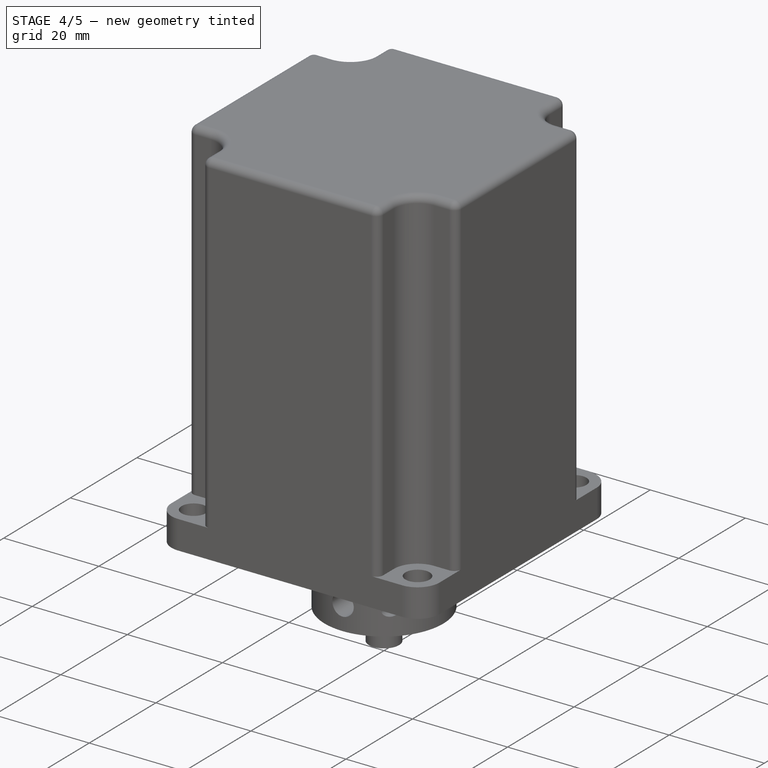
[diagram: stage 4 of 5 — iso view after this stage's code; geometry added in this stage tinted green]
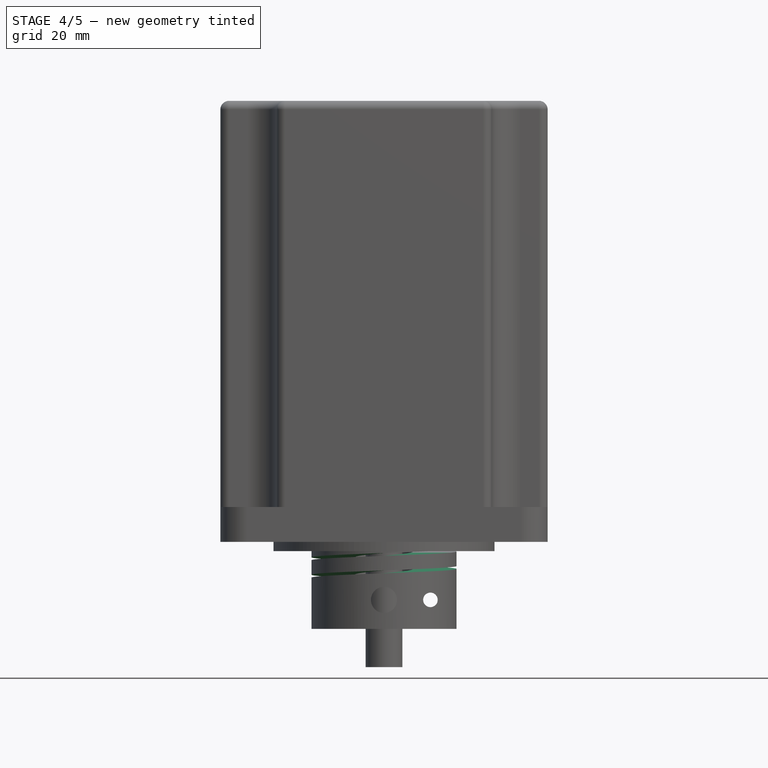
[diagram: stage 4 of 5 — front view after this stage's code; geometry added in this stage tinted green]
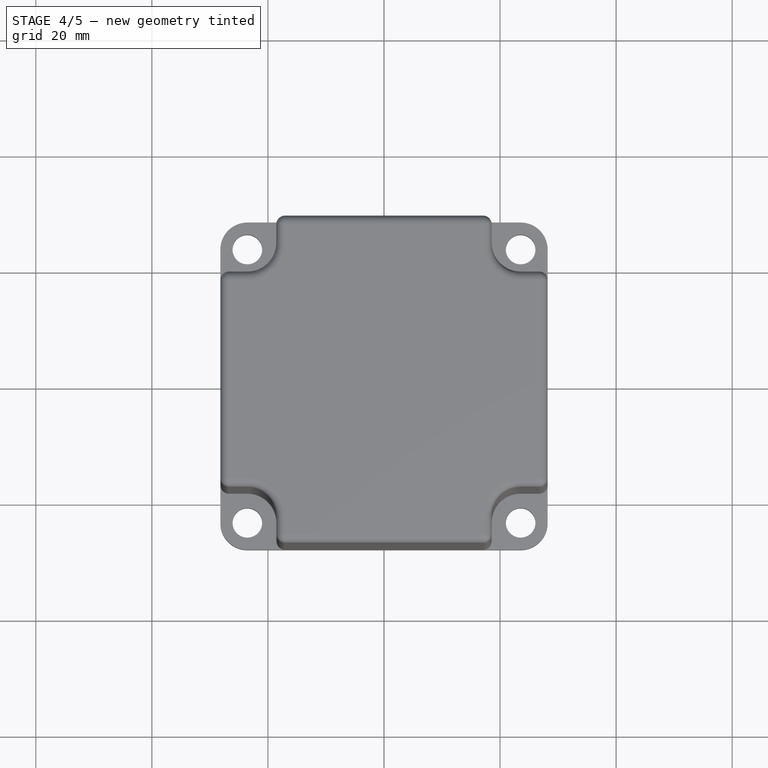
[diagram: stage 4 of 5 — top view after this stage's code; geometry added in this stage tinted green]
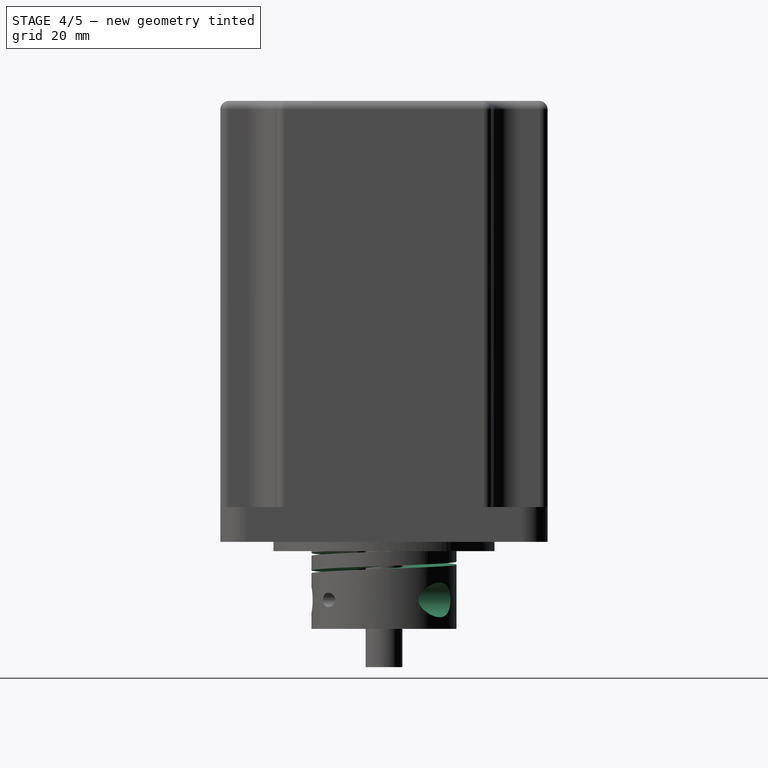
[diagram: stage 4 of 5 — right view after this stage's code; geometry added in this stage tinted green]
FEATURE [PartDesign::Hole] Hole002
  BaseFeature = -> Hole001
  ClaimChildren = false
  CustomThreadClearance = 0
  Depth = 25
  DepthType = 1
  Diameter = 3.1
  DrillForDepth = false
  DrillPoint = 1
  DrillPointAngle = 118
  Fit = 0
  FitJoin = 0
  HoleCutCountersinkAngle = 90
  HoleCutCustomValues = false
  HoleCutDepth = 0
  HoleCutDiameter = 6.1
  HoleCutType = 0
  InnerFit = 0
  InnerFitJoin = 0
  ModelThread = false
  NewSolid = false
  Profile = -> Sketch010
  Refine = true
  Suppress = false
  Tapered = false
  TaperedAngle = 90
  ThreadClass = 0
  ThreadDepth = 93.56
  ThreadDepthType = 0
  ThreadDirection = 0
  ThreadFit = 0
  ThreadSize = 0
  ThreadType = 0
  Threaded = false
  UseCustomThreadClearance = false
FEATURE [PartDesign::Hole] Hole003
  BaseFeature = -> Hole002
  ClaimChildren = false
  CustomThreadClearance = 0
  Depth = 25
  DepthType = 1
  Diameter = 6
  DrillForDepth = false
  DrillPoint = 1
  DrillPointAngle = 118
  Fit = 0
  FitJoin = 0
  HoleCutCountersinkAngle = 90
  HoleCutCustomValues = false
  HoleCutDepth = 0
  HoleCutDiameter = 6.1
  HoleCutType = 0
  InnerFit = 0
  InnerFitJoin = 0
  ModelThread = false
  NewSolid = false
  Profile = -> Sketch011
  Refine = true
  Suppress = false
  Tapered = false
  TaperedAngle = 90
  ThreadClass = 0
  ThreadDepth = 93.56
  ThreadDepthType = 0
  ThreadDirection = 0
  ThreadFit = 0
  ThreadSize = 0
  ThreadType = 0
  Threaded = false
  UseCustomThreadClearance = false
FEATURE [Sketcher::SketchObject] Sketch012
  AttachmentOffset = pos=(0,0,0) rot=(0,1,0;0.349066rad)
  ExternalGeometry = -> [Hole003]
  FullyConstrained = true
  MapMode = 5
  Placement = pos=(0,0,0) rot=(0.443713,0.633687,0.633687;2.30637rad)
  Support = -> [YZ_Plane001]
  sketch-geometry (4):
    g0: LineSegment StartX=4 StartY=-6.25 StartZ=0 EndX=14 EndY=-6.25 EndZ=0
    g1: LineSegment StartX=14 StartY=-6.25 StartZ=0 EndX=14 EndY=-6.75 EndZ=0
    g2: LineSegment StartX=14 StartY=-6.75 StartZ=0 EndX=4 EndY=-6.75 EndZ=0
    g3: LineSegment StartX=4 StartY=-6.75 StartZ=0 EndX=4 EndY=-6.25 EndZ=0
  constraints (12):
    c: Coincident(g0,g1)
    c: Coincident(g1,g2)
    c: Coincident(g2,g3)
    c: Coincident(g3,g0)
    c: Horizontal(g0)
    c: Horizontal(g2)
    c: Vertical(g1)
    c: Vertical(g3)
    c: DistanceY(g1,g1) = 0.5
    c: DistanceX(g2,g2) = 10
    c: DistanceX(g-1,g0) = 4
    c: DistanceY(g-3,g2) = 8.25
FEATURE [PartDesign::SubtractiveHelix] SubtractiveHelix
  Angle = 0
  Axis = (-2e-16,2e-16,1)
  Base = (0,0,0)
  BaseFeature = -> Hole003
  ClaimChildren = false
  Fit = 0
  FitJoin = 0
  HasBeenEdited = true
  Height = 13
  InnerFit = 0
  InnerFitJoin = 0
  LeftHanded = false
  Mode = 0
  NewSolid = false
  Outside = false
  Pitch = 3
  Profile = -> Sketch012
  ReferenceAxis = -> Sketch012 [V_Axis]
  Refine = true
  Suppress = false
  Turns = 3
FEATURE [PartDesign::Pocket] Pocket002
  BaseFeature = -> SubtractiveHelix
  ClaimChildren = false
  Fit = 0
  FitJoin = 0
  InnerFit = 0
  InnerFitJoin = 0
  InnerTaperAngle = 0
  InnerTaperAngleRev = 0
  Length = 10.5
  Length2 = 100
  Linearize = true
  NewSolid = false
  Profile = -> Sketch007
  Refine = true
  Suppress = false
  Type = 0
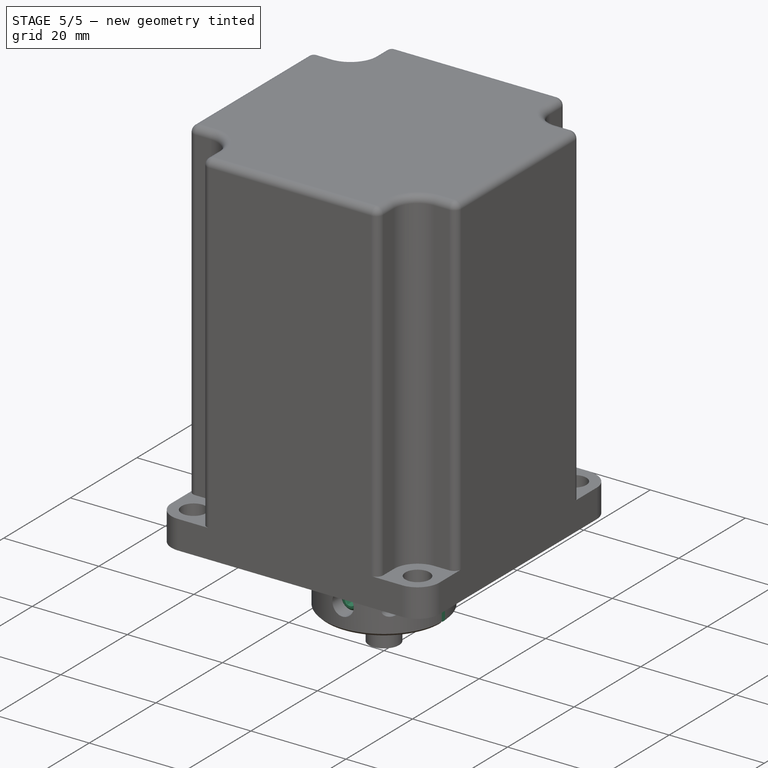
[diagram: stage 5 of 5 — iso view after this stage's code; geometry added in this stage tinted green]
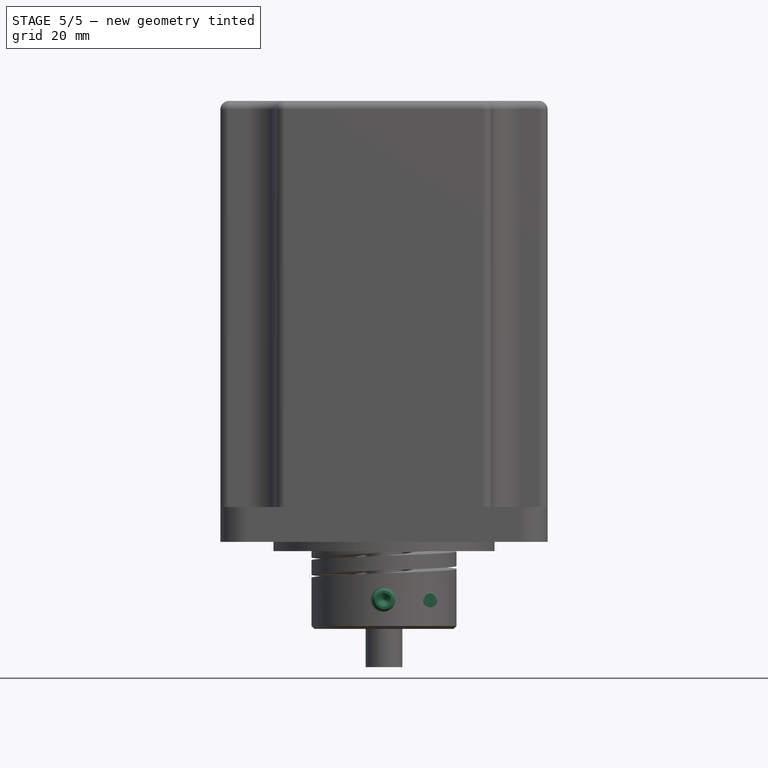
[diagram: stage 5 of 5 — front view after this stage's code; geometry added in this stage tinted green]
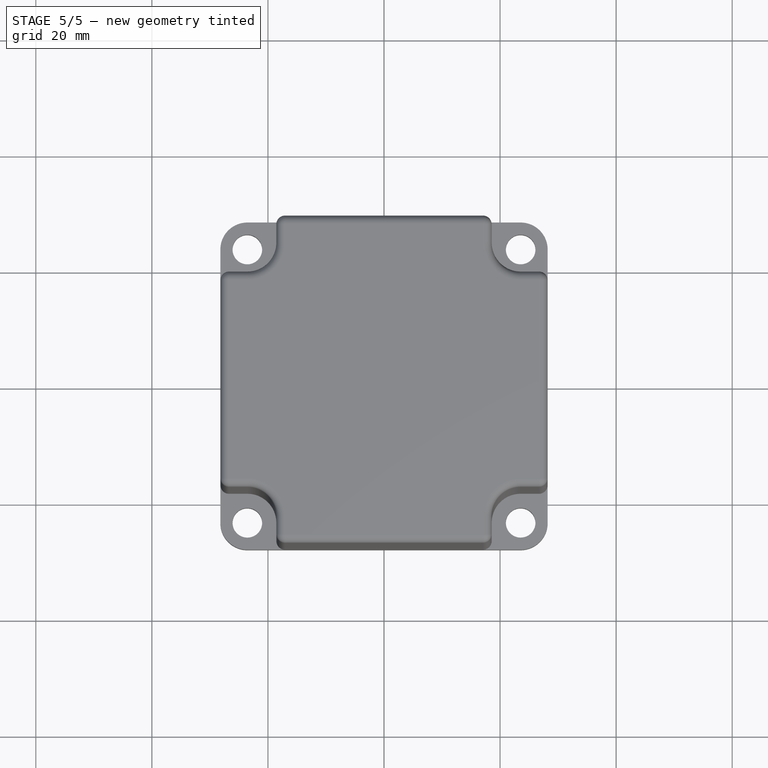
[diagram: stage 5 of 5 — top view after this stage's code; geometry added in this stage tinted green]
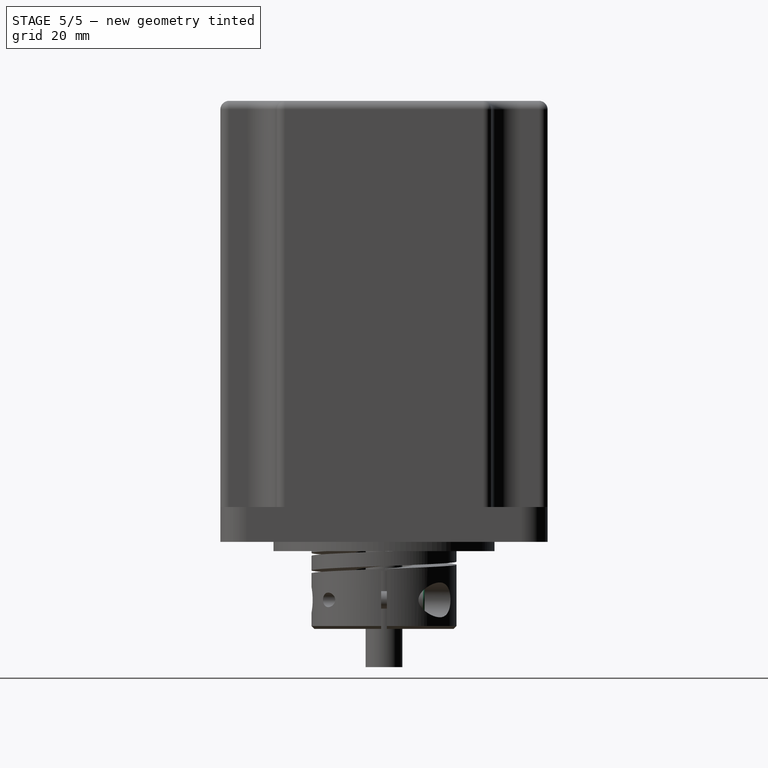
[diagram: stage 5 of 5 — right view after this stage's code; geometry added in this stage tinted green]
FEATURE [Sketcher::SketchObject] Sketch013
  FullyConstrained = true
  MapMode = 5
  Placement = pos=(0,0,-15) rot=(1,0,0;3.14159rad)
  Support = -> [Pocket002]
  sketch-geometry (4):
    g0: LineSegment StartX=-11.5 StartY=0.5 StartZ=0 EndX=13.5 EndY=0.5 EndZ=0
    g1: LineSegment StartX=13.5 StartY=0.5 StartZ=0 EndX=13.5 EndY=-0.5 EndZ=0
    g2: LineSegment StartX=13.5 StartY=-0.5 StartZ=0 EndX=-11.5 EndY=-0.5 EndZ=0
    g3: LineSegment StartX=-11.5 StartY=-0.5 StartZ=0 EndX=-11.5 EndY=0.5 EndZ=0
  constraints (11):
    c: Coincident(g0,g1)
    c: Coincident(g1,g2)
    c: Coincident(g2,g3)
    c: Coincident(g3,g0)
    c: Horizontal(g0)
    c: Horizontal(g2)
    c: Vertical(g3)
    c: DistanceY(g1,g1) = 1
    c: Symmetric(g1,g0,g-1)
    c: DistanceX(g2,g2) = 25
    c: DistanceX(g2,g-1) = 11.5
FEATURE [PartDesign::Pocket] Pocket003
  BaseFeature = -> Pocket002
  ClaimChildren = false
  Fit = 0
  FitJoin = 0
  InnerFit = 0
  InnerFitJoin = 0
  InnerTaperAngle = 0
  InnerTaperAngleRev = 0
  Length = 10
  Length2 = 100
  Linearize = true
  NewSolid = false
  Profile = -> Sketch013
  Refine = true
  Suppress = false
  Type = 0
FEATURE [App::Link] Link001  label="Link001(Coupling)"
  AutoLinkLabel = true
  LinkedObject = -> Body001
  SyncGroupVisibility = false
  _LinkVersion = 1
FEATURE [Part::FeaturePython] Screw  label="M3x12-Screw"  # Fasteners workbench fastener (typed FeaturePython)
  Placement = pos=(8,4,-10) rot=(0,0.707107,0.707107;3.14159rad)
  diameter = 4
  invert = false
  length = 4
  lengthCustom = 12
  matchOuter = false
  offset = 0
  thread = false
  type = 33
FEATURE [Part::FeaturePython] Screw001  label="M4x8-Screw"  # Fasteners workbench fastener (typed FeaturePython)
  Placement = pos=(0,-10.23,-10) rot=(1,0,0;1.5708rad)
  diameter = 7
  invert = false
  length = 3
  lengthCustom = 8
  matchOuter = false
  offset = 0
  thread = false
  type = 29
FEATURE [App::Link] Link002  label="Link002(M4x8-Screw)"
  AutoLinkLabel = true
  LinkPlacement = pos=(0,-12.23,10) rot=(1,0,0;1.5708rad)
  LinkedObject = -> Screw001
  Placement = pos=(0,-12.23,10) rot=(1,0,0;1.5708rad)
  SyncGroupVisibility = false
  _LinkVersion = 1
FEATURE [App::Link] Link003  label="Link003(M3x12-Screw)"
  AutoLinkLabel = true
  LinkPlacement = pos=(8,4,10) rot=(0,0.707107,0.707107;3.14159rad)
  LinkedObject = -> Screw
  Placement = pos=(8,4,10) rot=(0,0.707107,0.707107;3.14159rad)
  SyncGroupVisibility = false
  _LinkVersion = 1
FEATURE [Part::FeaturePython] Parts001  # WARN: FeaturePython — macro-defined, semantics opaque (R4)
  Group = -> [Link001,Screw,Screw001,Link002,Link003]
  GroupMode = 0
  _LinkVersion = 1
FEATURE [PartDesign::Chamfer] Chamfer
  Angle = 45
  Base = -> Pocket003 [Edge115,Edge1,Edge17,Edge21,Edge138,Edge143]
  BaseFeature = -> Pocket003
  ChamferType = 0
  FlipDirection = false
  NewSolid = false
  Refine = true
  Size = 0.5
  Size2 = 1
  SupportTransform = false
  Suppress = false
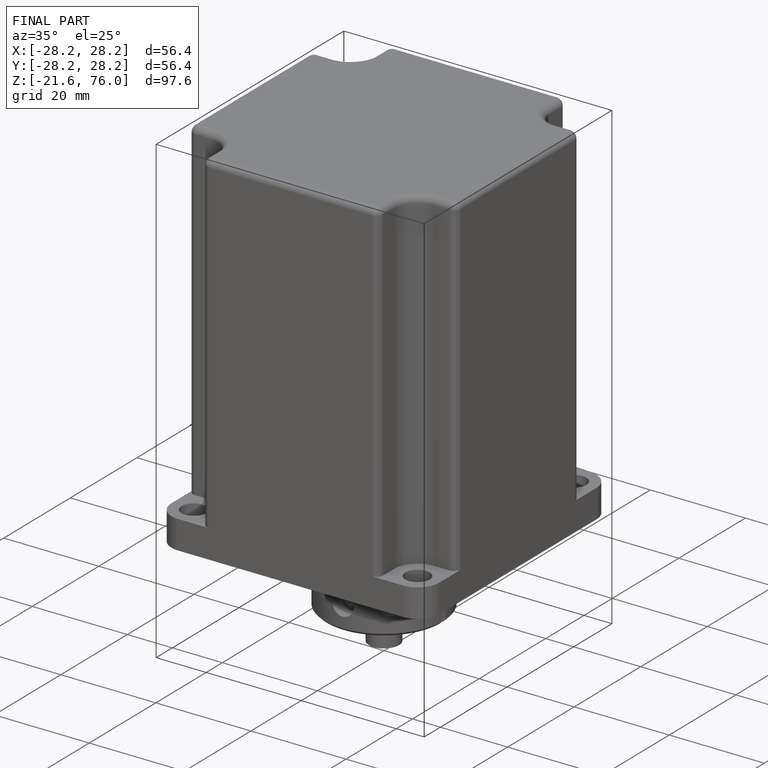
[diagram: finished part — iso view with bounding-box wireframe]
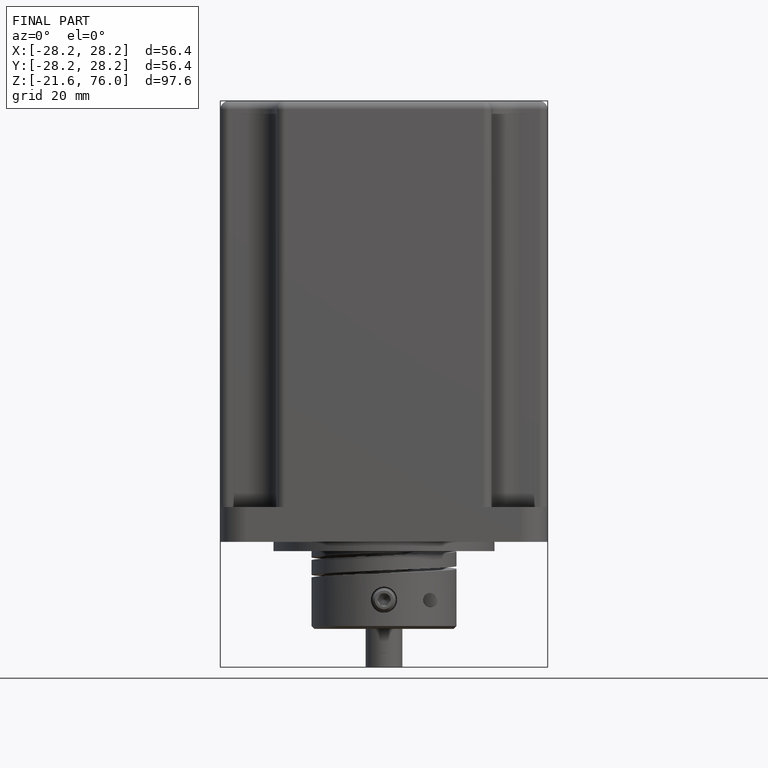
[diagram: finished part — front view with bounding-box wireframe]
